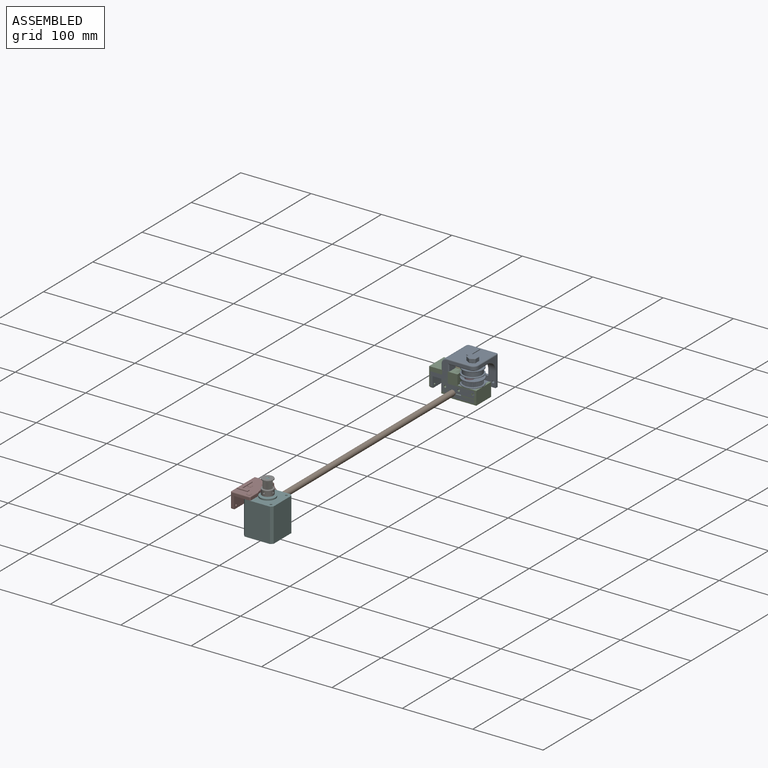
[diagram: assembled view]
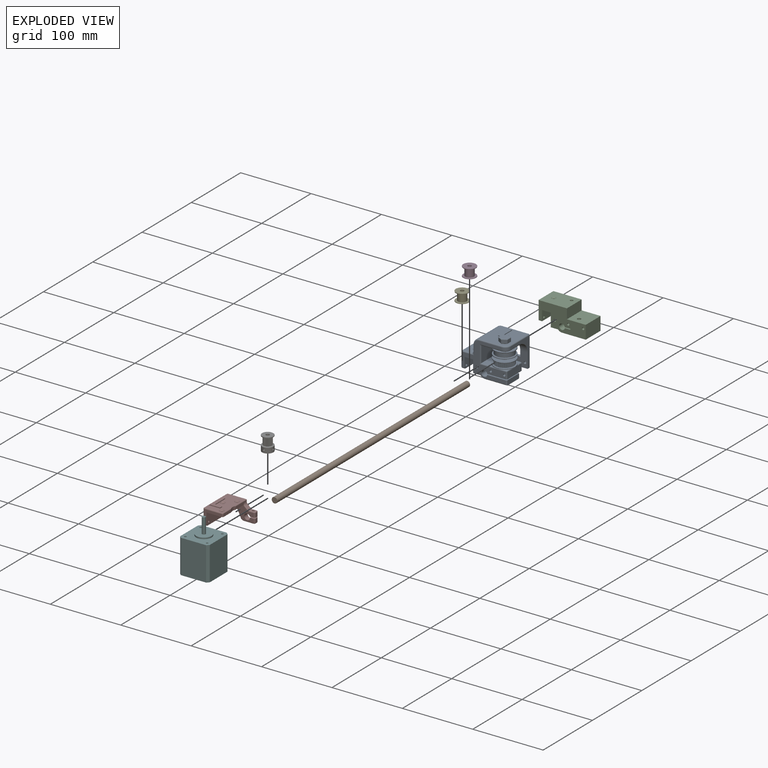
[diagram: exploded view]
GUIDED TOUR — MATED ASSEMBLY WITH SUBASSEMBLIES (Onshape document 58cbdf679c913a0fc9029d9f, AutoMate assembly 58cbdf679c913a0fc9029d9f_970c845e21e658205128aea7_4b9fd83f3cd1a50e471c1bdd_default)

This assembly has 14 component occurrences arranged in 8 top-level units: 7 individual components plus 1 subassembly (S0). The tour has two levels: first the top level, where each subassembly is treated as one rigid unit; then each subassembly is toured internally in its own section (nesting deeper than one subassembly level is flattened into its subassembly's section).

Components are labeled P0..P13 across the whole record; subassembly units are labeled S0..S0. A mate is a constraint between two units; its type names the relative motion it leaves free:
  FASTENED — locks the two components together rigidly (no relative motion).
Axis/direction vectors are unit vectors and 'through' points are millimeter coordinates, both in the assembly's world frame.

TOP-LEVEL MATES (between units; each subassembly's internal mates are listed in its own section)
  1. FASTENED "Fastened 1": S0 <-> P1, direction (0.000, 1.000, 0.000) through (0.00, 398.00, 0.00) mm
  2. FASTENED "Fastened 6": P6 <-> P4, direction (0.000, 0.000, -1.000) through (-1.00, 394.00, 26.55) mm
  3. FASTENED "Fastened 3": P8 <-> P11, direction (0.000, 0.000, 1.000) through (-10.50, -24.50, 14.00) mm
  4. FASTENED "Fastened 7": P5 <-> P4, direction (0.000, 0.000, -1.000) through (18.00, 382.00, 12.55) mm
  5. FASTENED "Fastened 4": P11 <-> P1, direction (0.000, -1.000, 0.000) through (0.00, 12.00, 0.00) mm
  6. FASTENED "Fastened 2": P9 <-> P8, direction (0.000, 0.000, 1.000) through (5.00, -9.00, 38.00) mm
  7. FASTENED "Fastened 5": P4 <-> P1, direction (0.000, 1.000, 0.000) through (0.00, 403.00, 0.00) mm

TOP-LEVEL ASSEMBLY ORDER
  1. P1 — the base component [order heuristic]
  2. S0 — core [order heuristic]
  3. P4 — core [order heuristic]
  4. P5 — core [order heuristic]
  5. P6 — core [order heuristic]
  6. P11 [order verified]
  7. P8 [order verified]
  8. P9 [order verified]
Order-tag legend:
  [order verified] — this step's position reverses a verified removal order: the component was checked to insert without passing through the ones already placed.
  [order heuristic] — the first 5 components form the assembly's core: parts whose collision-free extraction could not be verified, listed in mate-graph order.

Of the 14 component occurrences, 1 carries the full construction recipe — the FeatureScript program that regenerates the part's solid from scratch; the rest are supplied as boundary geometry only. Each toured unit is shown spotlighted twice — assembled, then exploded with a leader line back to its socket (green = recipe-attached component, orange = geometry-only, blue = subassembly unit; the rest desaturated gray).
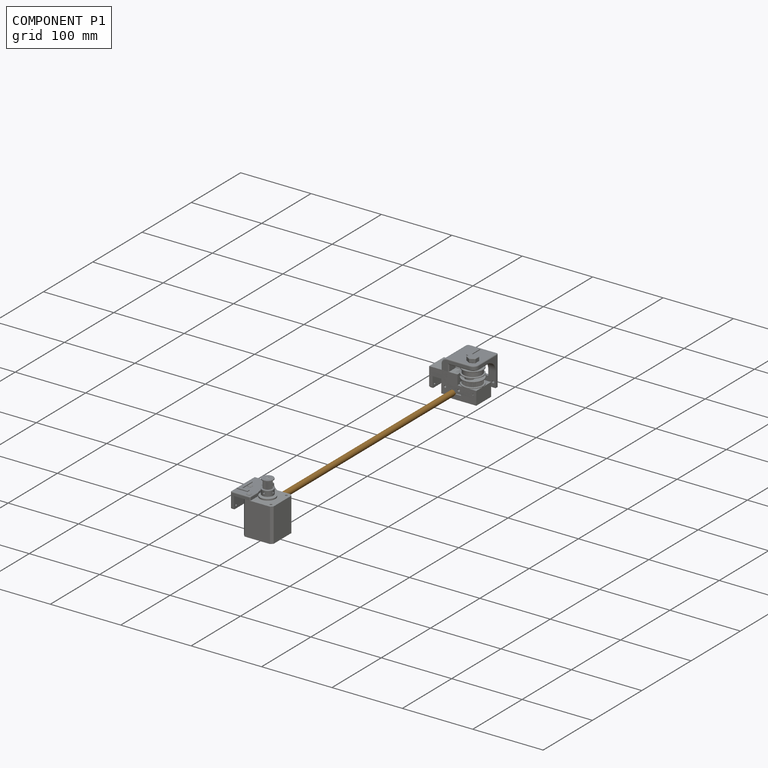
[diagram: component P1 — assembled]
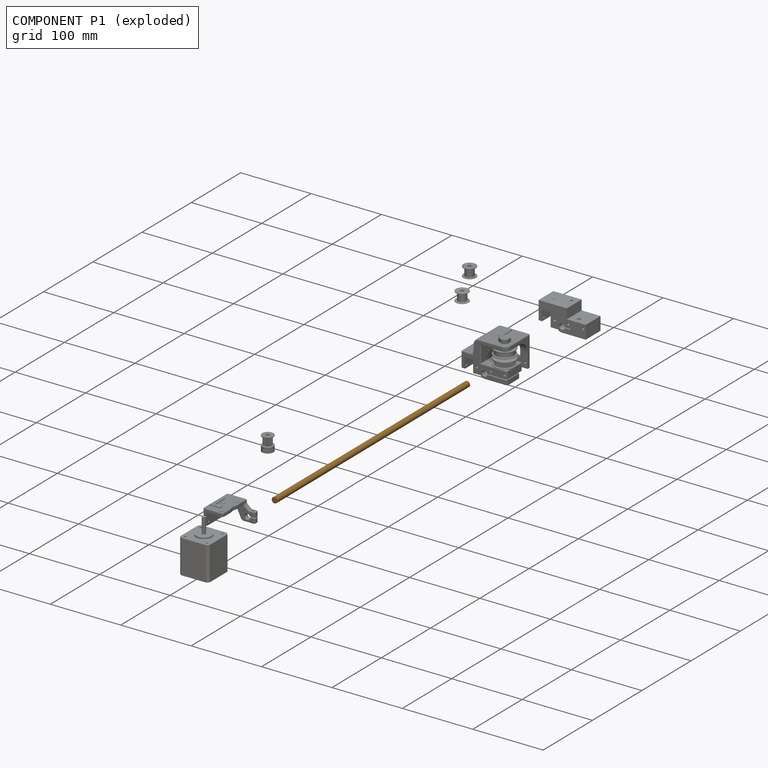
[diagram: component P1 — exploded]
COMPONENT P1 — geometry summary (no construction recipe available for this part):
  bounding box: 391.0 x 8.0 x 8.0 mm
  B-rep topology: 1 solid, 3 faces, 6 edges
  volume: 19654 mm^3 (79% of its bounding box)
  symmetry: 2-fold rotationally symmetric about the x axis; revolution-symmetric about the y axis through its bounding-box center; 2-fold rotationally symmetric about the z axis; mirror-symmetric across its x mid-plane, y mid-plane, z mid-plane
Held by: FASTENED mate "Fastened 1" to P0; FASTENED mate "Fastened 4" to P11; FASTENED mate "Fastened 5" to P4.
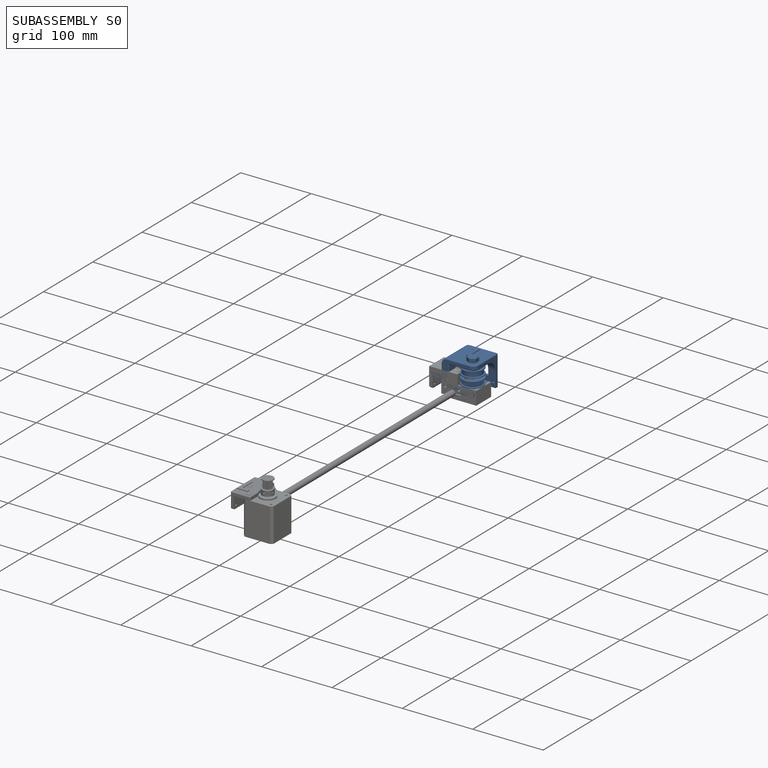
[diagram: subassembly S0 — assembled]
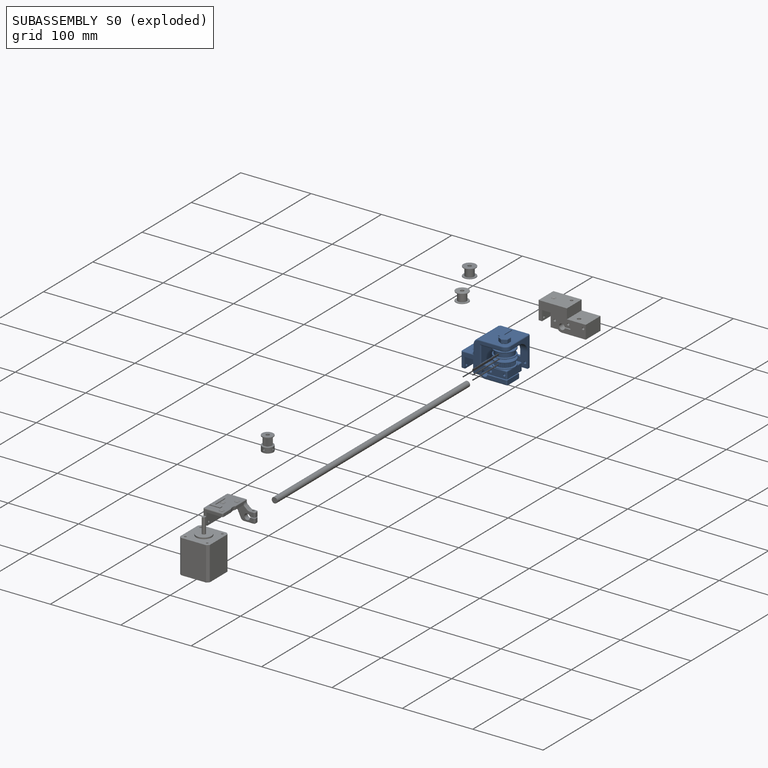
[diagram: subassembly S0 — exploded]
SUBASSEMBLY S0 — 7 components (P0, P2, P3, P7, P10, P12, P13), of which 1 recipe-attached; toured below.
Held by: FASTENED mate "Fastened 1" to P1.
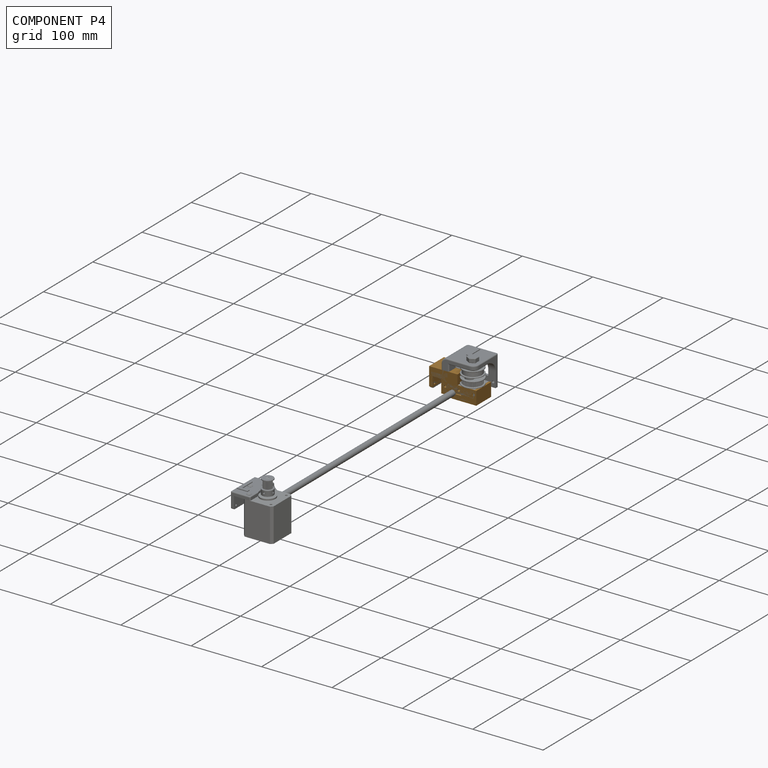
[diagram: component P4 — assembled]
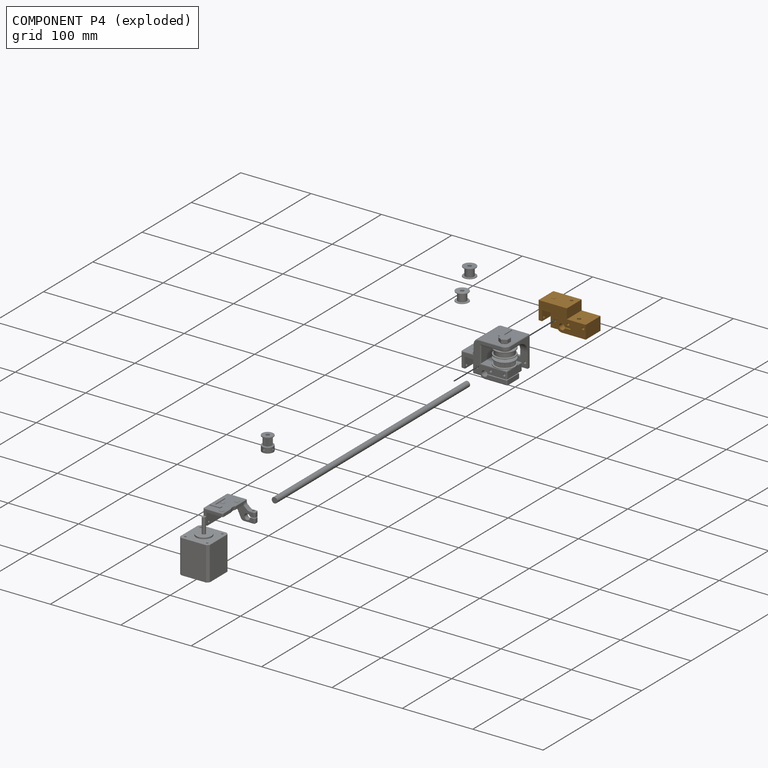
[diagram: component P4 — exploded]
COMPONENT P4 — geometry summary (no construction recipe available for this part):
  bounding box: 67.0 x 33.1 x 30.0 mm
  B-rep topology: 1 solid, 29 faces, 168 edges
  volume: 41740 mm^3 (63% of its bounding box)
Held by: FASTENED mate "Fastened 6" to P6; FASTENED mate "Fastened 7" to P5; FASTENED mate "Fastened 5" to P1.
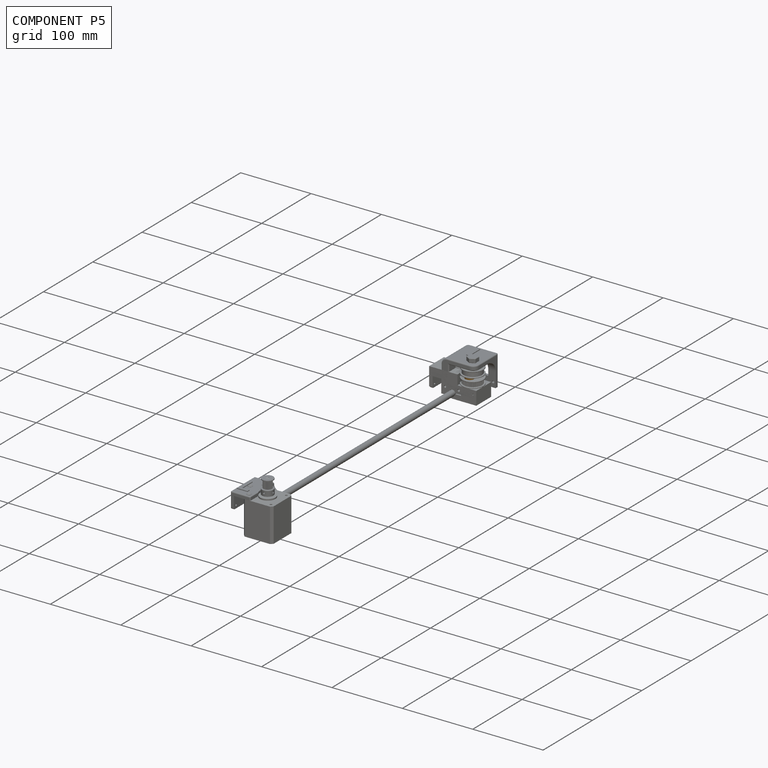
[diagram: component P5 — assembled]
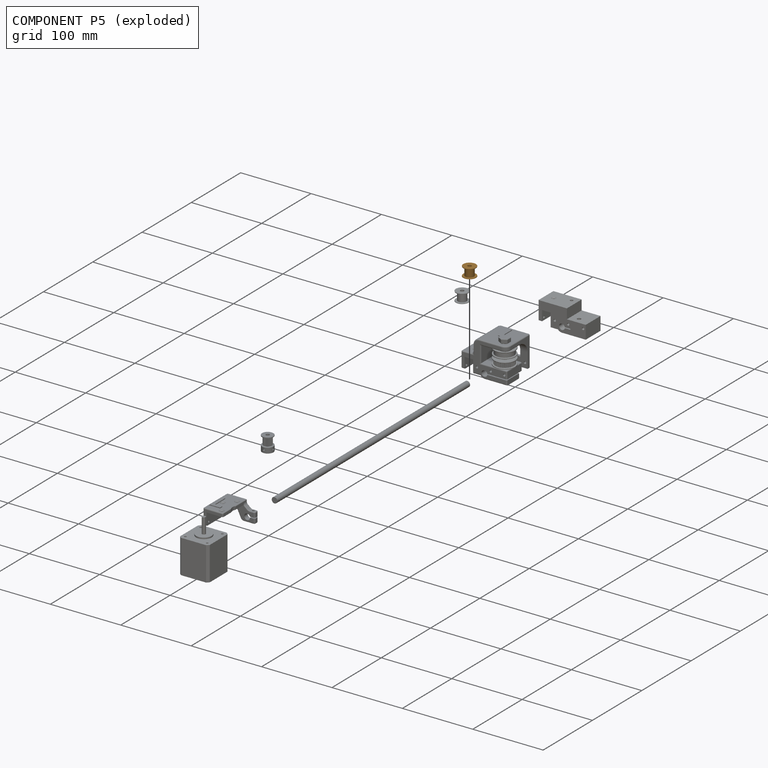
[diagram: component P5 — exploded]
COMPONENT P5 — geometry summary (no construction recipe available for this part):
  bounding box: 18.0 x 18.0 x 13.1 mm
  B-rep topology: 1 solid, 8 faces, 26 edges
  volume: 1456 mm^3 (34% of its bounding box)
  symmetry: 2-fold rotationally symmetric about the x axis; 2-fold rotationally symmetric about the y axis; revolution-symmetric about the z axis through its bounding-box center; mirror-symmetric across its x mid-plane, y mid-plane, z mid-plane
Held by: FASTENED mate "Fastened 7" to P4.
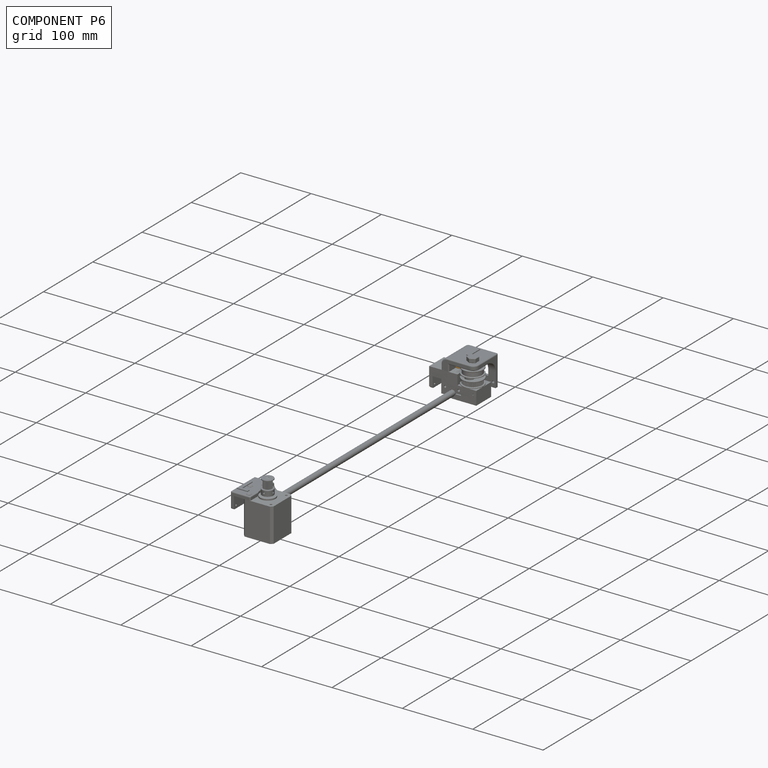
[diagram: component P6 — assembled]
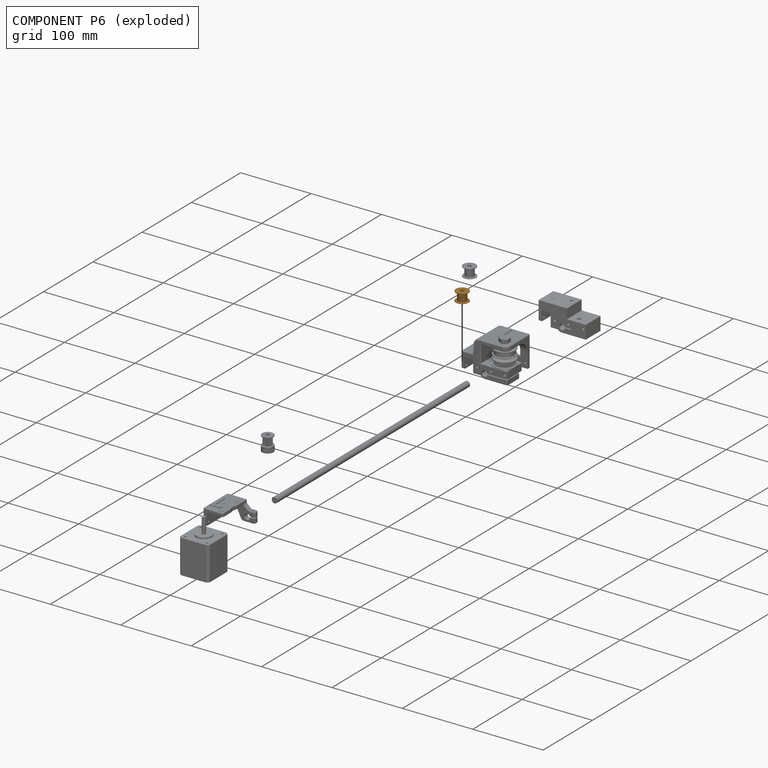
[diagram: component P6 — exploded]
COMPONENT P6 — geometry summary (no construction recipe available for this part):
  bounding box: 18.0 x 18.0 x 13.1 mm
  B-rep topology: 1 solid, 8 faces, 26 edges
  volume: 1456 mm^3 (34% of its bounding box)
  symmetry: 2-fold rotationally symmetric about the x axis; 2-fold rotationally symmetric about the y axis; revolution-symmetric about the z axis through its bounding-box center; mirror-symmetric across its x mid-plane, y mid-plane, z mid-plane
Held by: FASTENED mate "Fastened 6" to P4.
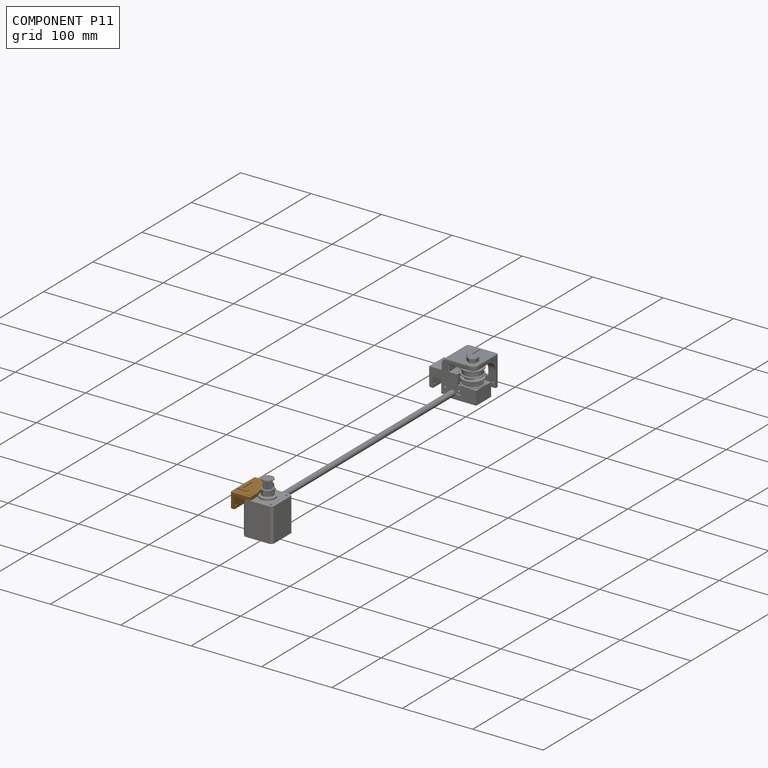
[diagram: component P11 — assembled]
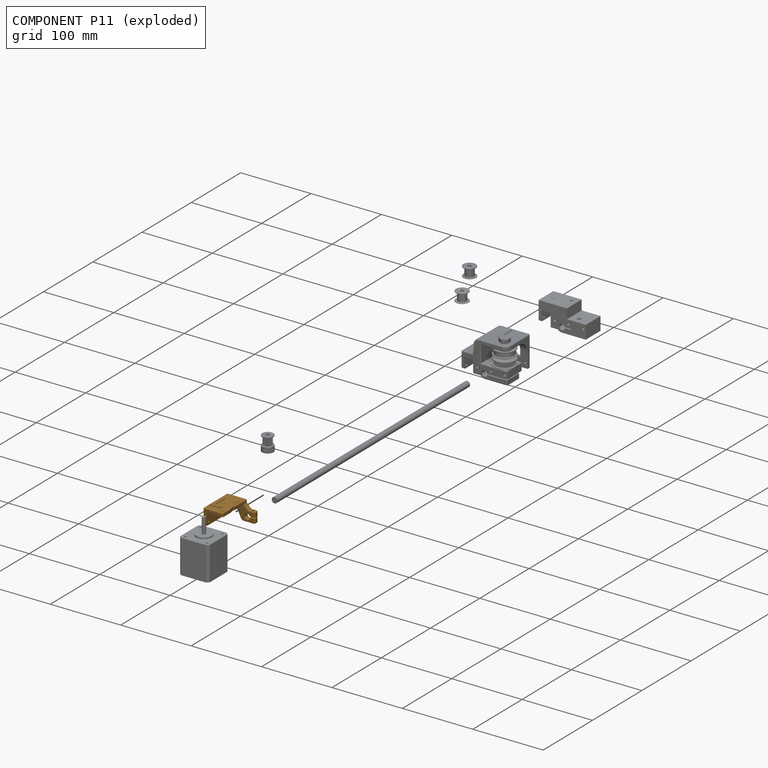
[diagram: component P11 — exploded]
COMPONENT P11 — geometry summary (no construction recipe available for this part):
  bounding box: 49.2 x 44.2 x 27.4 mm
  B-rep topology: 1 solid, 88 faces, 441 edges
  volume: 13348 mm^3 (22% of its bounding box)
Held by: FASTENED mate "Fastened 3" to P8; FASTENED mate "Fastened 4" to P1.
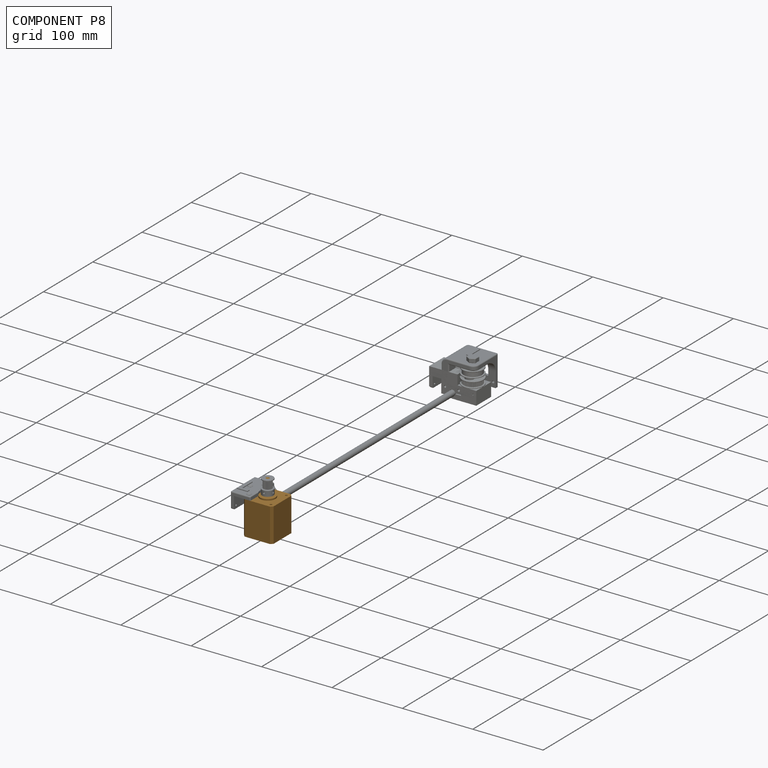
[diagram: component P8 — assembled]
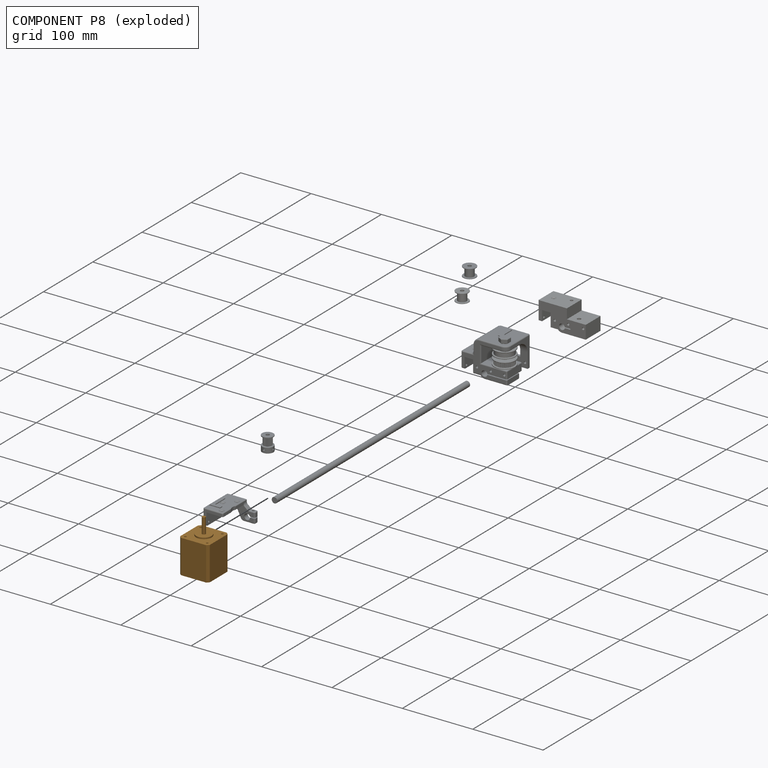
[diagram: component P8 — exploded]
COMPONENT P8 — geometry summary (no construction recipe available for this part):
  bounding box: 72.0 x 42.0 x 42.0 mm
  B-rep topology: 1 solid, 24 faces, 96 edges
  volume: 84702 mm^3 (67% of its bounding box)
  symmetry: 4-fold rotationally symmetric about the z axis; mirror-symmetric across its x mid-plane, y mid-plane
Held by: FASTENED mate "Fastened 3" to P11; FASTENED mate "Fastened 2" to P9.
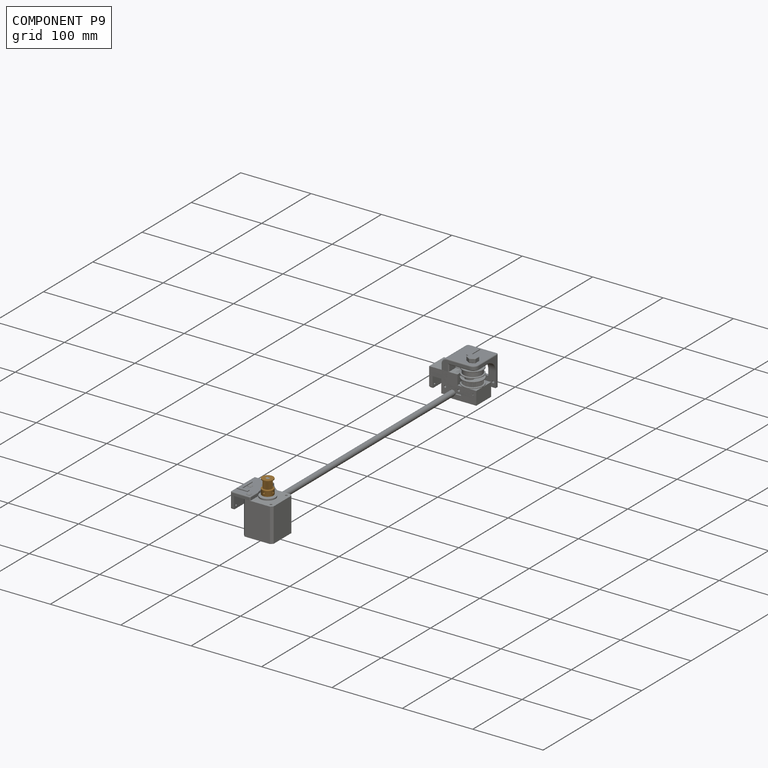
[diagram: component P9 — assembled]
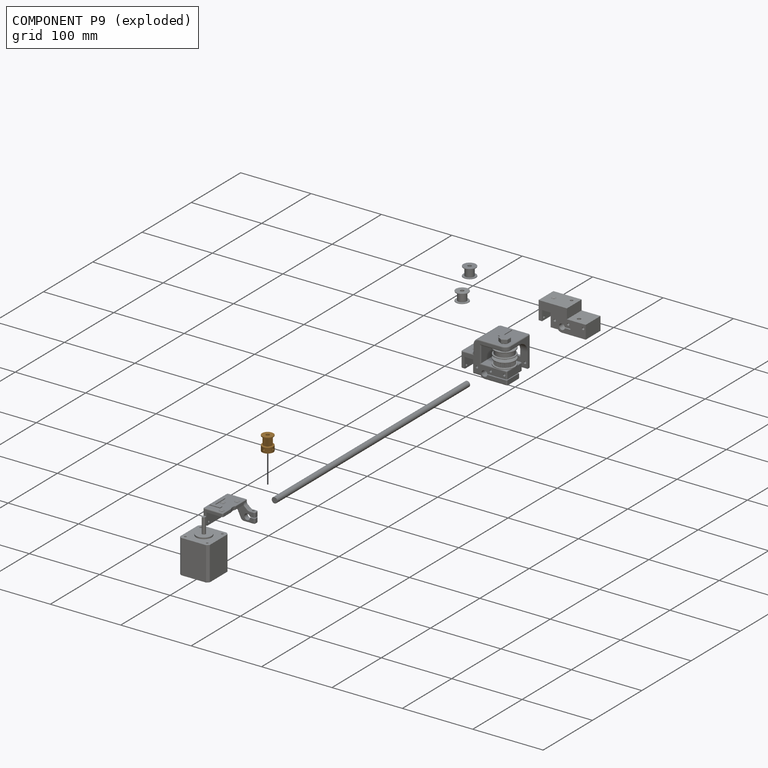
[diagram: component P9 — exploded]
COMPONENT P9 — geometry summary (no construction recipe available for this part):
  bounding box: 20.5 x 16.0 x 16.0 mm
  B-rep topology: 1 solid, 131 faces, 760 edges
  volume: 2561 mm^3 (49% of its bounding box)
Held by: FASTENED mate "Fastened 2" to P8.
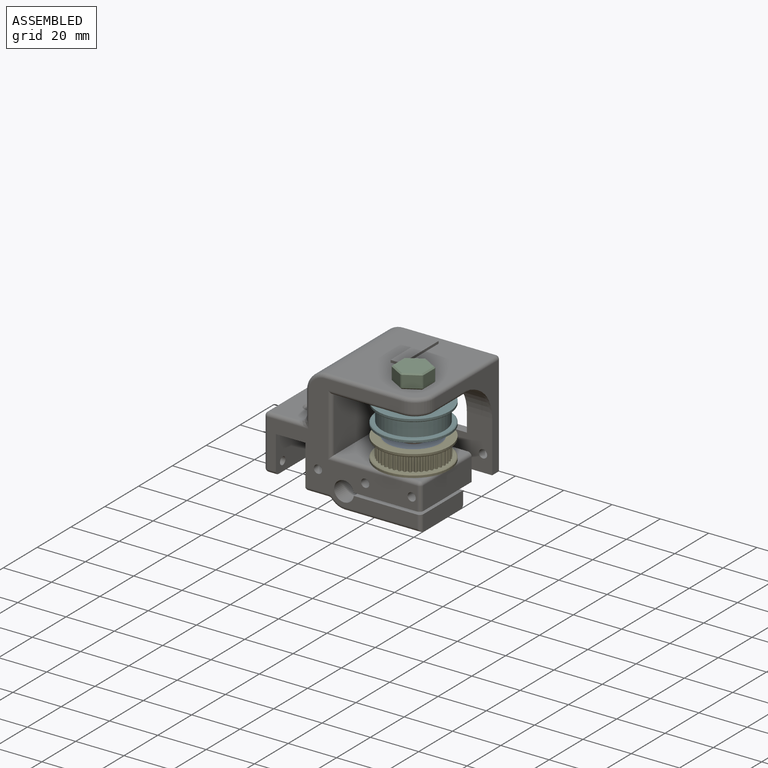
[diagram: subassembly S0 — assembled view]
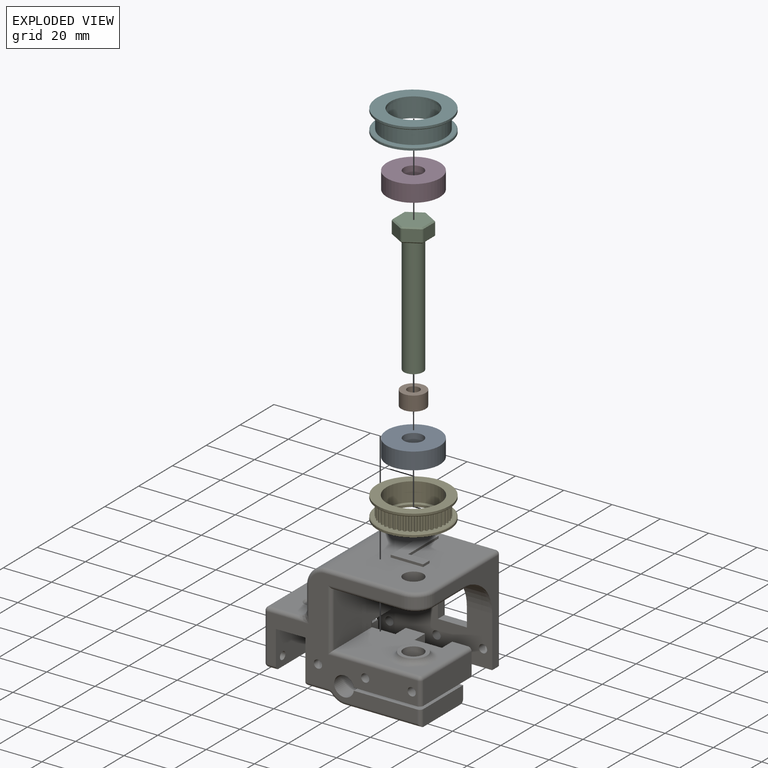
[diagram: subassembly S0 — exploded view]
SUBASSEMBLY S0 TOUR — 7 components, shown here in isolation at its own camera.

INTERNAL MATES
  1. FASTENED "Fastened 2": P2 <-> P0, direction (0.000, 0.000, -1.000) through (20.00, 385.50, 20.60) mm
  2. FASTENED "Fastened 4": P7 <-> P2, direction (0.000, 0.000, -1.000) through (20.00, 385.50, 26.60) mm
  3. FASTENED "Fastened 1": P10 <-> P0, direction (0.000, 0.000, 1.000) through (20.00, 385.50, 13.60) mm
  4. FASTENED "Fastened 3": P12 <-> P7, direction (0.000, 0.000, -1.000) through (20.00, 385.50, 33.60) mm
  5. FASTENED "Fastened 1": P0 <-> P13, direction (0.000, 0.000, -1.000) through (20.00, 385.50, 13.60) mm
  6. FASTENED "Fastened 2": P3 <-> P13, direction (0.000, 0.000, -1.000) through (20.00, 385.50, 41.60) mm
  7. FASTENED "Fastened 2": P3 <-> P13, direction (0.000, 0.000, -1.000) through (20.00, 385.50, 41.60) mm
  8. FASTENED "Fastened 1": P10 <-> P0, direction (0.000, 0.000, 1.000) through (20.00, 385.50, 13.60) mm
  9. FASTENED "Fastened 1": P0 <-> P13, direction (0.000, 0.000, -1.000) through (20.00, 385.50, 13.60) mm
  10. FASTENED "Fastened 4": P7 <-> P2, direction (0.000, 0.000, -1.000) through (20.00, 385.50, 26.60) mm
  11. FASTENED "Fastened 2": P2 <-> P0, direction (0.000, 0.000, -1.000) through (20.00, 385.50, 20.60) mm
  12. FASTENED "Fastened 3": P12 <-> P7, direction (0.000, 0.000, -1.000) through (20.00, 385.50, 33.60) mm

ASSEMBLY ORDER (within the subassembly)
  1. P0 — the base component [order heuristic]
  2. P10 — core [order heuristic]
  3. P13 — core [order heuristic]
  4. P2 [order verified]
  5. P3 [order verified]
  6. P7 — core [order heuristic]
  7. P12 — core [order heuristic]
Order-tag legend:
  [order verified] — this step's position reverses a verified removal order: the component was checked to insert without passing through the ones already placed.
  [order heuristic] — the first 5 components form the assembly's core: parts whose collision-free extraction could not be verified, listed in mate-graph order.
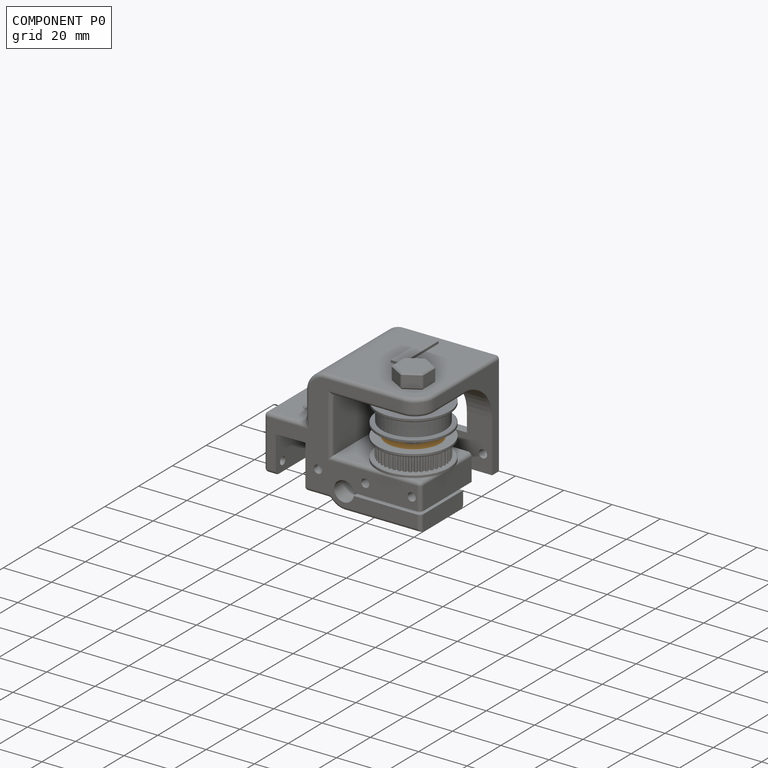
[diagram: component P0 — assembled]
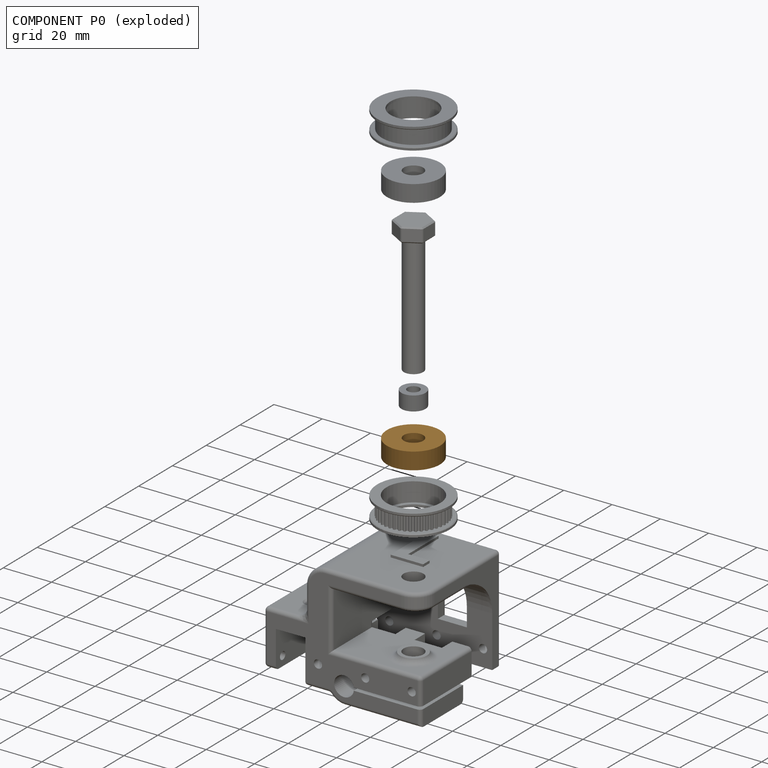
[diagram: component P0 — exploded]
COMPONENT P0 — geometry summary (no construction recipe available for this part):
  bounding box: 22.0 x 22.0 x 7.0 mm
  B-rep topology: 1 solid, 4 faces, 12 edges
  volume: 2309 mm^3 (68% of its bounding box)
  symmetry: 2-fold rotationally symmetric about the x axis; 2-fold rotationally symmetric about the y axis; revolution-symmetric about the z axis through its bounding-box center; mirror-symmetric across its x mid-plane, y mid-plane, z mid-plane
Held by: FASTENED mate "Fastened 2" to P2; FASTENED mate "Fastened 1" to P10; FASTENED mate "Fastened 1" to P13; FASTENED mate "Fastened 1" to P10; FASTENED mate "Fastened 1" to P13; FASTENED mate "Fastened 2" to P2.
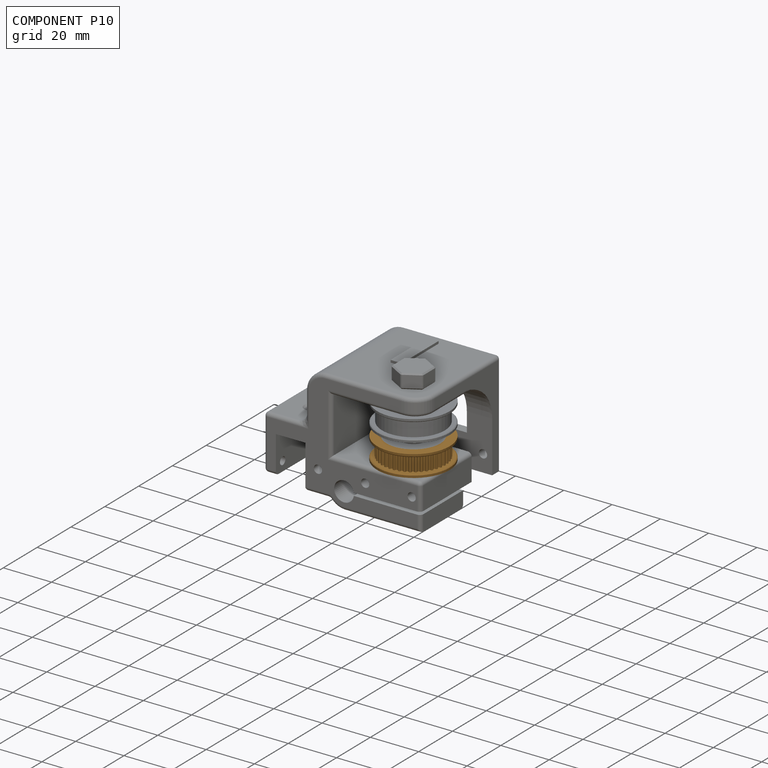
[diagram: component P10 — assembled]
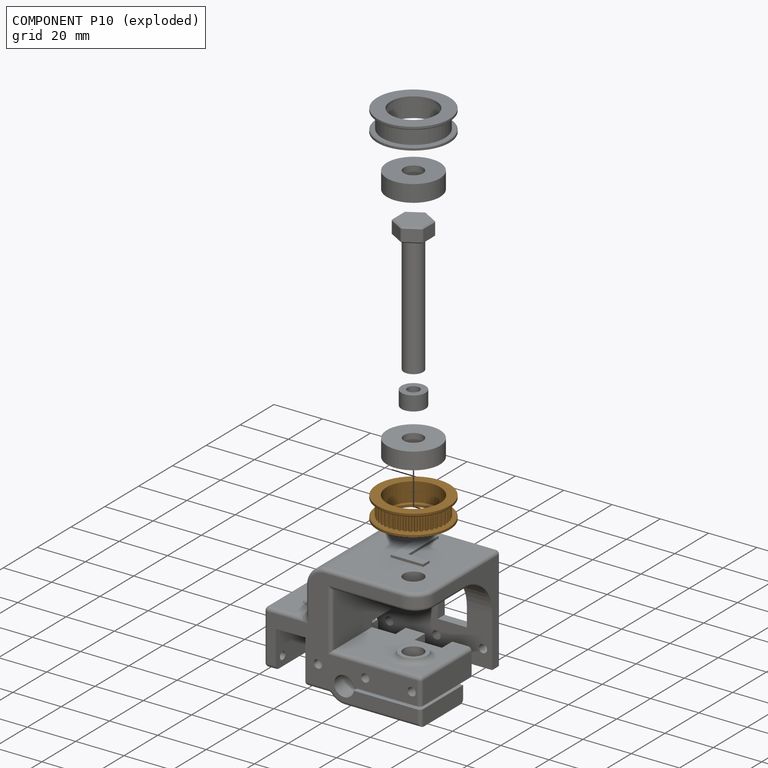
[diagram: component P10 — exploded]
COMPONENT P10 — geometry summary (no construction recipe available for this part):
  bounding box: 30.0 x 30.0 x 8.9 mm
  B-rep topology: 1 solid, 263 faces, 1546 edges
  volume: 1662 mm^3 (21% of its bounding box)
  symmetry: revolution-symmetric about the z axis through its bounding-box center; mirror-symmetric across its x mid-plane, y mid-plane
Held by: FASTENED mate "Fastened 1" to P0; FASTENED mate "Fastened 1" to P0.
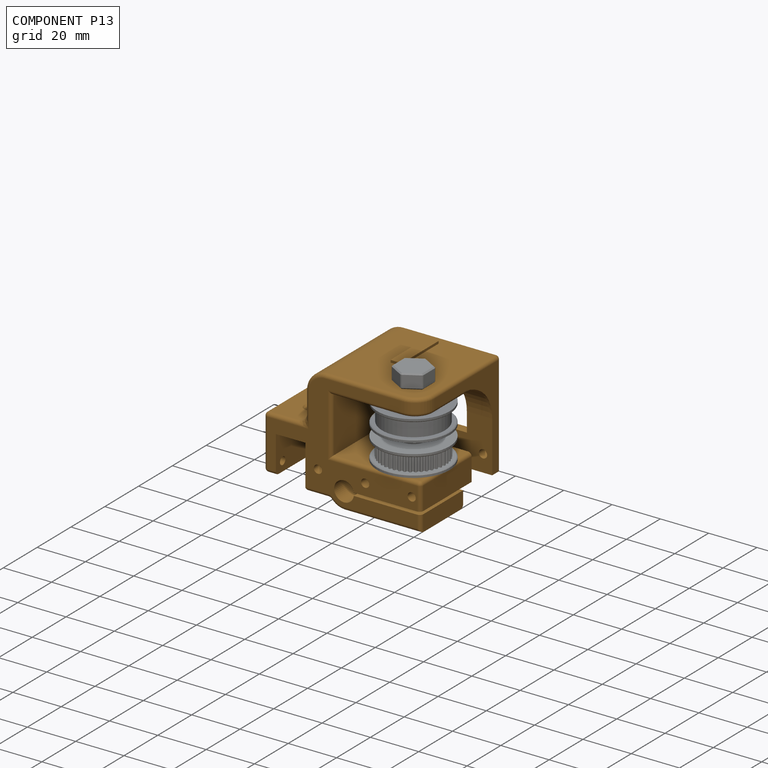
[diagram: component P13 — assembled]
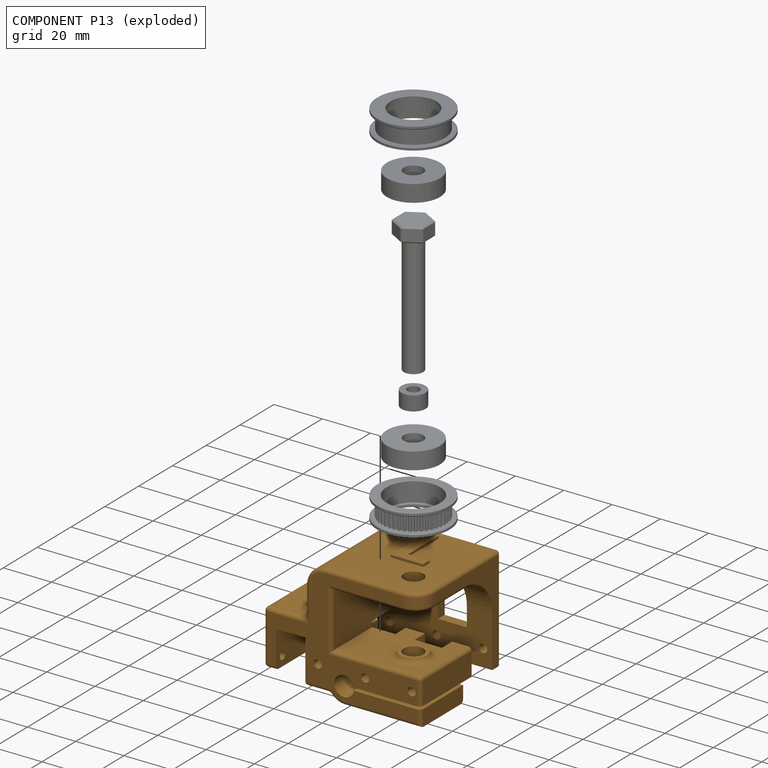
[diagram: component P13 — exploded]
COMPONENT P13 — geometry summary (no construction recipe available for this part):
  bounding box: 92.9 x 50.4 x 47.9 mm
  B-rep topology: 1 solid, 125 faces, 654 edges
  volume: 56994 mm^3 (25% of its bounding box)
Held by: FASTENED mate "Fastened 1" to P0; FASTENED mate "Fastened 2" to P3; FASTENED mate "Fastened 2" to P3; FASTENED mate "Fastened 1" to P0.
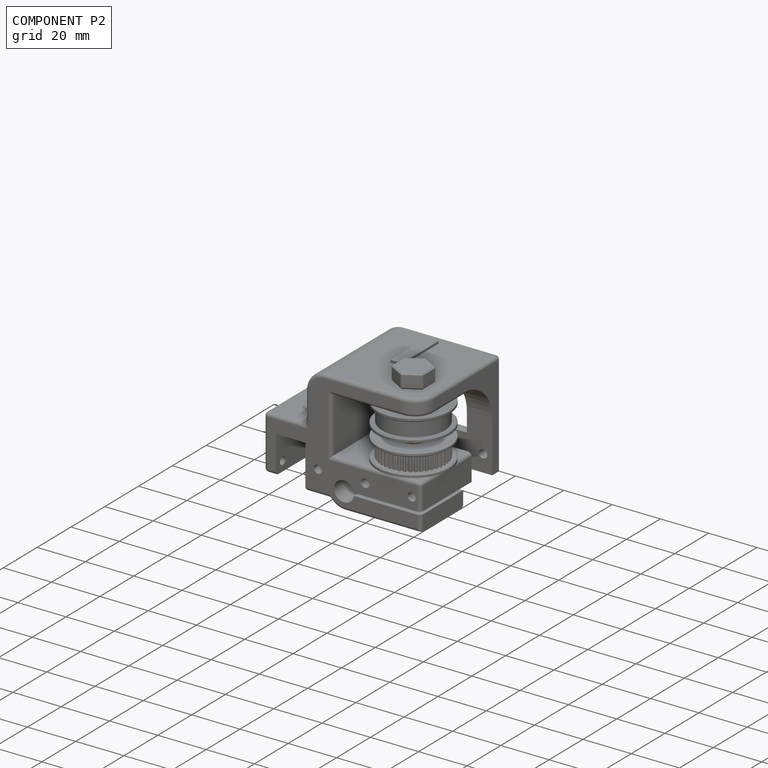
[diagram: component P2 — assembled]
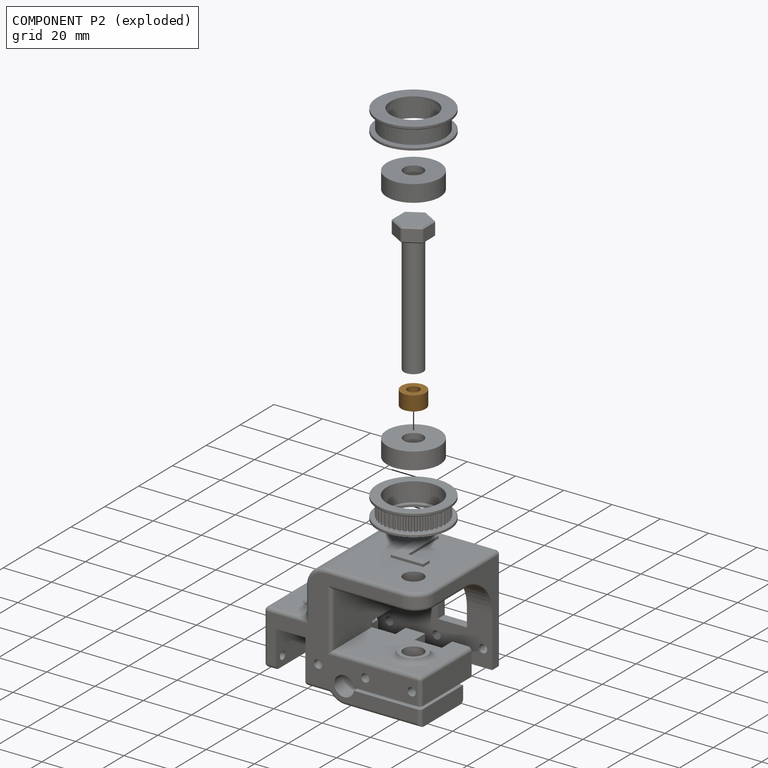
[diagram: component P2 — exploded]
COMPONENT P2 — geometry summary (no construction recipe available for this part):
  bounding box: 10.0 x 10.0 x 6.0 mm
  B-rep topology: 1 solid, 4 faces, 12 edges
  volume: 353 mm^3 (59% of its bounding box)
  symmetry: 2-fold rotationally symmetric about the x axis; 2-fold rotationally symmetric about the y axis; revolution-symmetric about the z axis through its bounding-box center; mirror-symmetric across its x mid-plane, y mid-plane, z mid-plane
Held by: FASTENED mate "Fastened 2" to P0; FASTENED mate "Fastened 4" to P7; FASTENED mate "Fastened 4" to P7; FASTENED mate "Fastened 2" to P0.
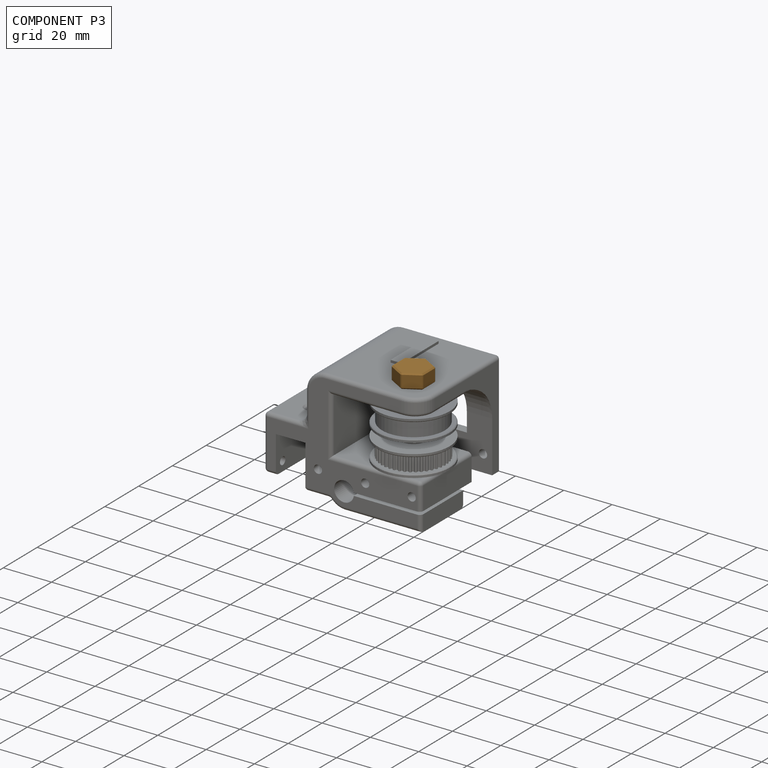
[diagram: component P3 — assembled]
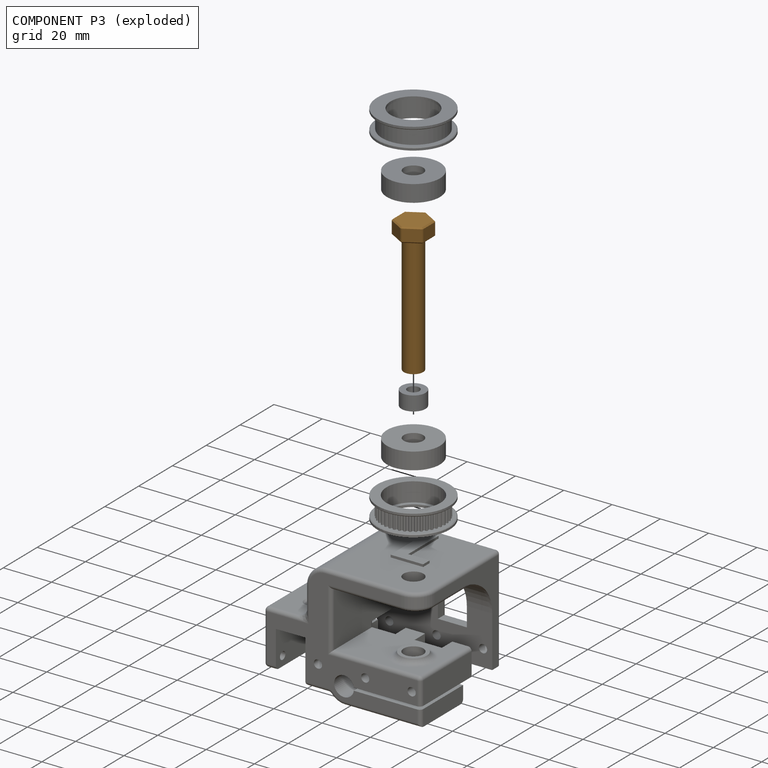
[diagram: component P3 — exploded]
COMPONENT P3 — geometry summary (no construction recipe available for this part):
  bounding box: 56.0 x 14.7 x 13.0 mm
  B-rep topology: 1 solid, 40 faces, 150 edges
  volume: 3379 mm^3 (32% of its bounding box)
  symmetry: 6-fold rotationally symmetric about the z axis; mirror-symmetric across its x mid-plane, y mid-plane
Held by: FASTENED mate "Fastened 2" to P13; FASTENED mate "Fastened 2" to P13.
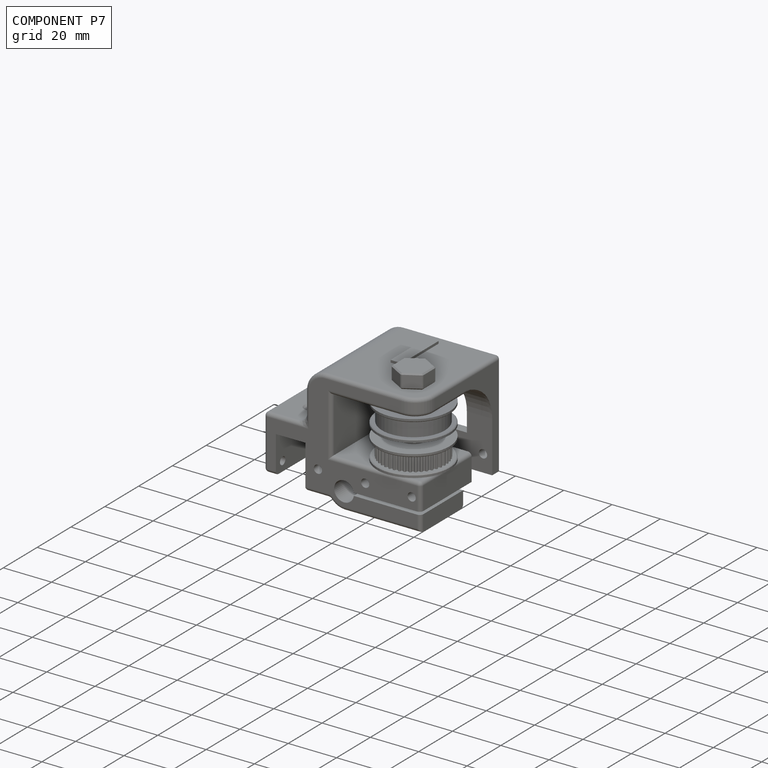
[diagram: component P7 — assembled]
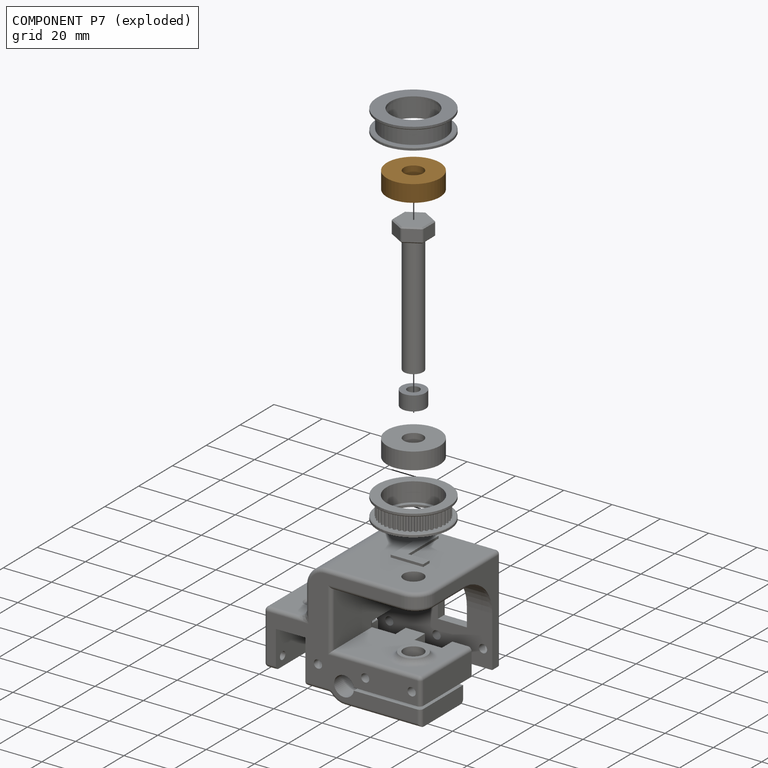
[diagram: component P7 — exploded]
COMPONENT P7 — geometry summary (no construction recipe available for this part):
  bounding box: 22.0 x 22.0 x 7.0 mm
  B-rep topology: 1 solid, 4 faces, 12 edges
  volume: 2309 mm^3 (68% of its bounding box)
  symmetry: 2-fold rotationally symmetric about the x axis; 2-fold rotationally symmetric about the y axis; revolution-symmetric about the z axis through its bounding-box center; mirror-symmetric across its x mid-plane, y mid-plane, z mid-plane
Held by: FASTENED mate "Fastened 4" to P2; FASTENED mate "Fastened 3" to P12; FASTENED mate "Fastened 4" to P2; FASTENED mate "Fastened 3" to P12.
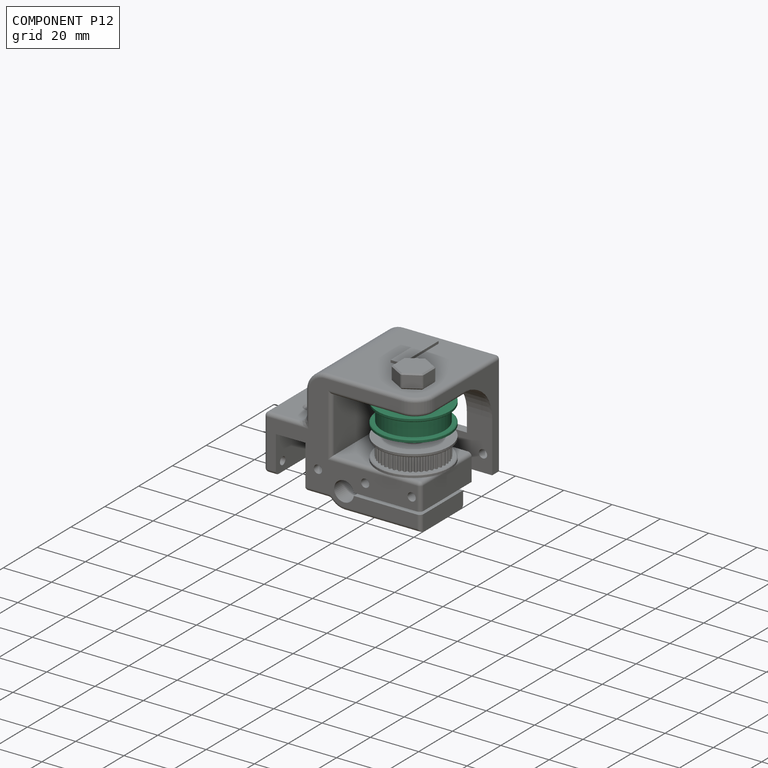
[diagram: component P12 — assembled]
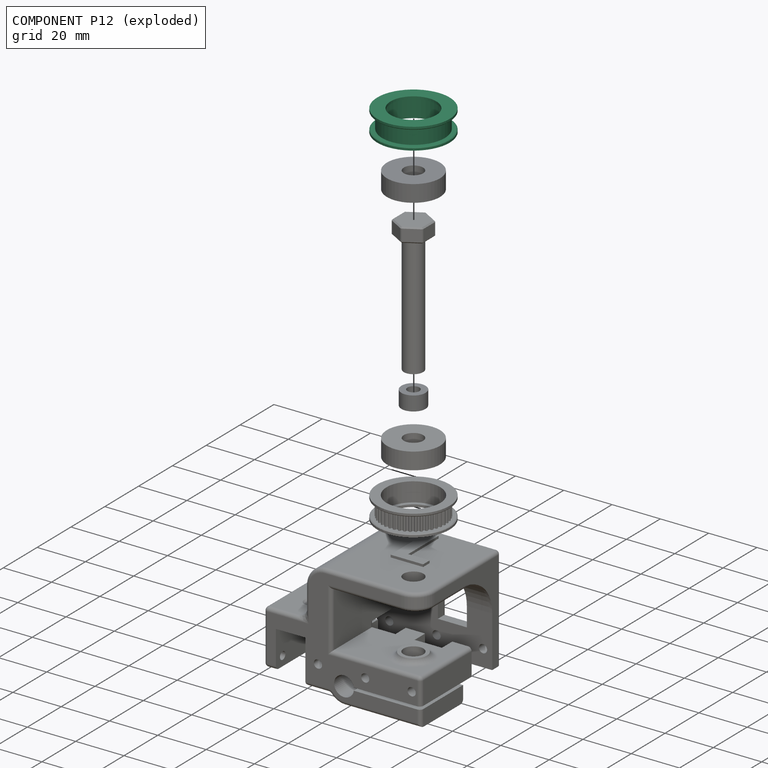
[diagram: component P12 — exploded]
COMPONENT P12 — recipe-attached (CADFS 00626625, mesh-verified: the recipe's output STEP matches this component's geometry to below the mesh-comparison resolution (tessellation chordal tolerance ~0.065 mm)).
Held by: FASTENED mate "Fastened 3" to P7; FASTENED mate "Fastened 3" to P7.
Construction recipe (FeatureScript — the CAD program that rebuilds this solid; sketch coordinates are in the units given by the * unit suffixes, e.g. mm):

FeatureScript 1732;
import(path : "onshape/std/geometry.fs", version : "1732.0");
import(path : "onshape/std/common.fs", version : "1732.0");
const mm = millimeter;
const VERTEX = EntityType.VERTEX;
const EDGE = EntityType.EDGE;
const FACE = EntityType.FACE;
const BODY = EntityType.BODY;
function v(x, y){return vector(x, y);}
function OD(order){return orderDisambiguation(order);}
function OSD(set){return originalSetDisambiguation(set);}
function TD(topology){return topologyDisambiguation(topology);}
function TDD(query){return trueDependencyDisambiguation(query);}
function sQuery(a, b, c) {return sketchEntityQuery(a, b, c);}

annotation { "Feature Type Name" : "Feature", "Feature Type Description" : "" }
export const myFeature = defineFeature(function(context is Context, id is Id, definition is map)
    precondition{}
    {
        {
            var Q0;
            Q0=qCreatedBy(makeId("Front.planeOp"),FACE);
            var sketch = newSketch(context, id + "F0", { "sketchPlane" : qUnion([Q0])});
            skLineSegment(sketch, "E0", {"start": v(0, 4.45) * mm, "end": v(15, 4.45) * mm});
            skLineSegment(sketch, "E1", {"start": v(15, 4.45) * mm, "end": v(15, 3.25) * mm});
            skLineSegment(sketch, "E2", {"start": v(15, 3.25) * mm, "end": v(13, 3.25) * mm});
            skLineSegment(sketch, "E3", {"start": v(13, 3.25) * mm, "end": v(13, -3.25) * mm});
            skLineSegment(sketch, "E4", {"start": v(13, -3.25) * mm, "end": v(15, -3.25) * mm});
            skLineSegment(sketch, "E5", {"start": v(15, -3.25) * mm, "end": v(15, -4.45) * mm});
            skLineSegment(sketch, "E6", {"start": v(15, -4.45) * mm, "end": v(0, -4.45) * mm});
            skPoint(sketch, "E7", {"position": v(0, 0) * mm});
            skLineSegment(sketch, "E8", {"start": v(0, 4.45) * mm, "end": v(0, -4.45) * mm});
            skSolve(sketch);
        }
        {
            var Q0;
            Q0=makeQuery(id+"F0.imprint","IMPRINT",FACE,{"disambiguationData":[TD([[makeQuery(id+"F0.imprint","IMPRINT",EDGE,{"derivedFrom":sQuery(id+"F0.wireOp",EDGE,"E0")}),-1.0]])]});
            var Q1;
            Q1=sQuery(id+"F0.wireOp",EDGE,"E0");
            var Q2;
            Q2=sQuery(id+"F0.wireOp",EDGE,"E1");
            var Q3;
            Q3=sQuery(id+"F0.wireOp",EDGE,"E6");
            var Q4;
            Q4=sQuery(id+"F0.wireOp",EDGE,"E2");
            var Q5;
            Q5=sQuery(id+"F0.wireOp",EDGE,"E4");
            var Q6;
            Q6=sQuery(id+"F0.wireOp",EDGE,"E5");
            var Q7;
            Q7=sQuery(id+"F0.wireOp",EDGE,"E3");
            var Q8;
            Q8=sQuery(id+"F0.wireOp",EDGE,"E8");
            revolve(context, id + "F1", {"entities" : qUnion([Q0]), "surfaceEntities" : qUnion([Q1, Q2, Q3, Q4, Q5, Q6, Q7]), "axis" : qUnion([Q8]), "revolveType" : RevolveType.FULL});
        }
        {
            var Q0;
            Q0=makeQuery(id+"F1.opRevolve","SWEPT_FACE",FACE,{"disambiguationData":[OSD([sQuery(id+"F0.wireOp",EDGE,"E0")])]});
            var sketch = newSketch(context, id + "F2", { "sketchPlane" : qUnion([Q0])});
            skCircle(sketch, "E9", {"center": v(0, 0) * mm, "radius": 9.5 * mm});
            skCircle(sketch, "E10", {"center": v(0, 0) * mm, "radius": 11.1 * mm});
            skSolve(sketch);
        }
        {
            var Q0;
            Q0=makeQuery(id+"F2.imprint","IMPRINT",FACE,{"disambiguationData":[TD([[makeQuery(id+"F2.imprint","IMPRINT",EDGE,{"derivedFrom":sQuery(id+"F2.wireOp",EDGE,"E9")}),1.0]])]});
            extrude(context, id + "F3", {"entities" : qUnion([Q0]), "operationType" : NewBodyOperationType.REMOVE, "endBound" : BoundingType.UP_TO_NEXT, "oppositeDirection" : true, "depth" : 25 * mm});
        }
        {
            var Q0;
            Q0=makeQuery(id+"F2.imprint","IMPRINT",FACE,{"disambiguationData":[TD([[makeQuery(id+"F2.imprint","IMPRINT",EDGE,{"derivedFrom":sQuery(id+"F2.wireOp",EDGE,"E9")}),-1.0]])]});
            extrude(context, id + "F4", {"entities" : qUnion([Q0]), "operationType" : NewBodyOperationType.REMOVE, "oppositeDirection" : true, "depth" : 7.9 * mm});
        }
        {
            var Q0;
            Q0=makeQuery(id+"F1.opRevolve","SWEPT_EDGE",EDGE,{"disambiguationData":[OSD([sQuery(id+"F0.wireOp",EDGE,"E4"),sQuery(id+"F0.wireOp",EDGE,"E5")])]});
            var Q1;
            Q1=makeQuery(id+"F1.opRevolve","SWEPT_EDGE",EDGE,{"disambiguationData":[OSD([sQuery(id+"F0.wireOp",EDGE,"E1"),sQuery(id+"F0.wireOp",EDGE,"E2")])]});
            chamfer(context, id + "F5", {"entities" : qUnion([Q0, Q1]), "width" : .3 * mm, "tangentPropagation" : true});
        }
    });
PROVENANCE & LICENSES
Assembly (occurrences, transforms, mates, per-part STEP geometry): AutoMate dataset, Zenodo record 7776208, CC0.
Construction recipes: CADFS (HuggingFace VladPyatov/CADFS, CC-BY-4.0, layered over the ABC dataset), FeatureScript reconstruction programs keyed by ABC model id.
Join: ABC meta listings map ABC model id -> Onshape documentId; within a shared document, parts are matched by geometric signature (bounding-box dims + volume at 0.1% relative tolerance, exact B-rep face/solid counts).
Verification: 1 of this assembly's 14 components carries a recipe attachment, and every attachment is mesh-verified: the CADFS STEP and the AutoMate member STEP were compared as meshes in their shared local frame (symmetric sampled-point-to-mesh distance); worst across the 1 attachment: below the mesh-comparison resolution (tessellation chordal tolerance ~0.065 mm) on a 43 mm part.
Renders: orthographic iso camera (az 35 / el 25); the floor grid conveys scale (grid pitch printed in each image; no ruler). In the exploded view each component is displaced by its stored offset vector: the offsets alone carry the explosion direction (mate normal/axis signs are not orientation cues and do not encode it), and separation distances are assigned per mate-chain, not proportionally to assembly-order depth.
